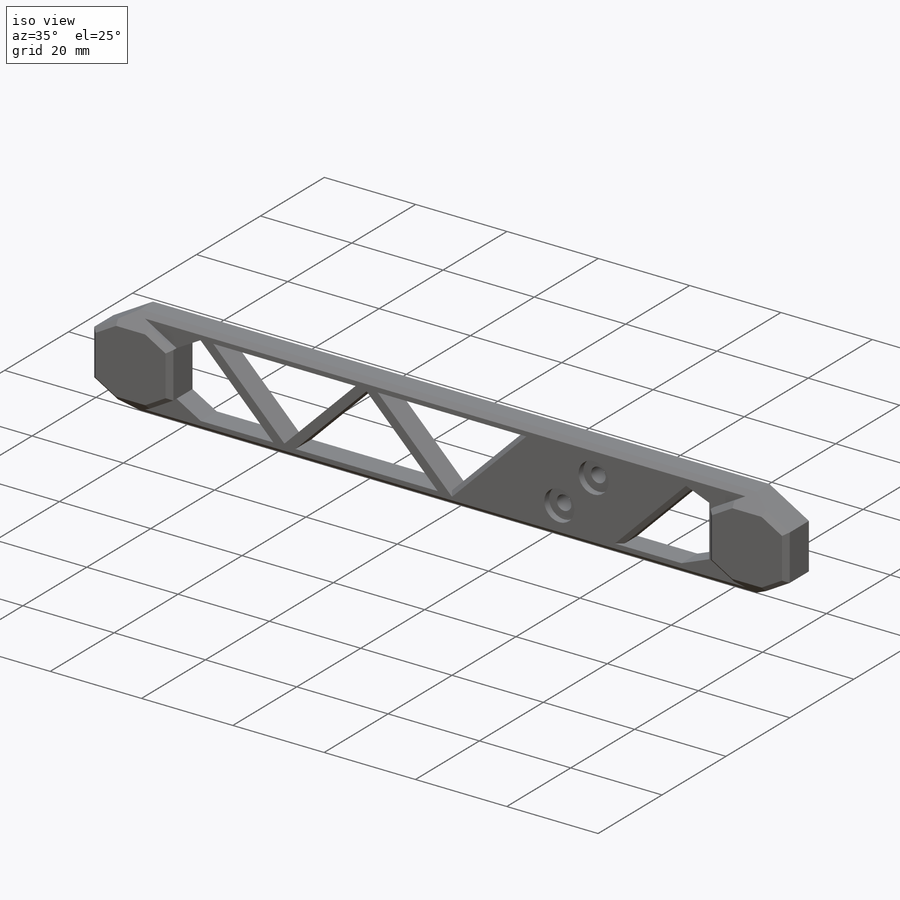
[diagram: iso view]
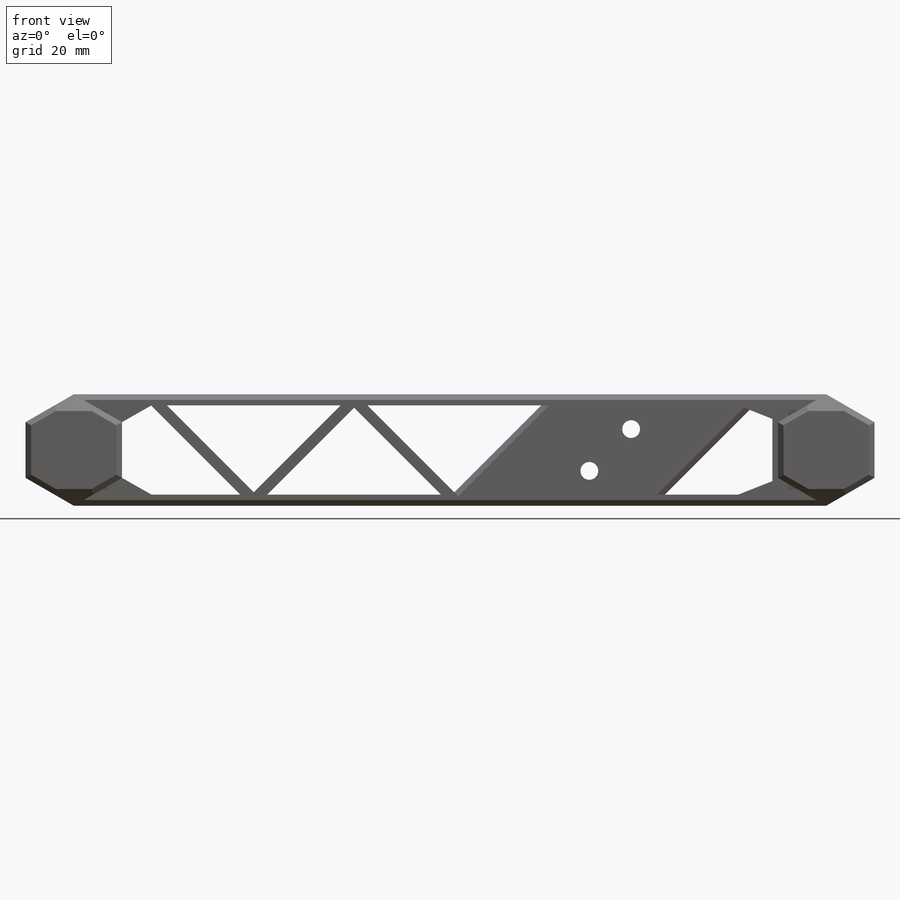
[diagram: front view]
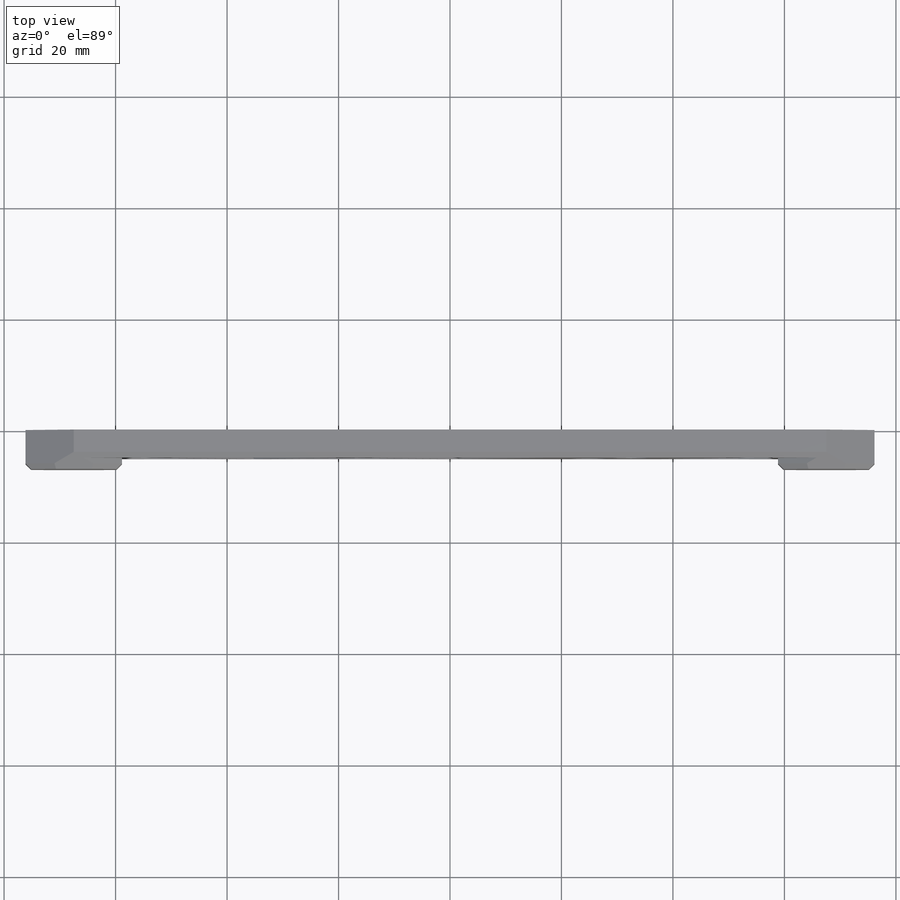
[diagram: top view]
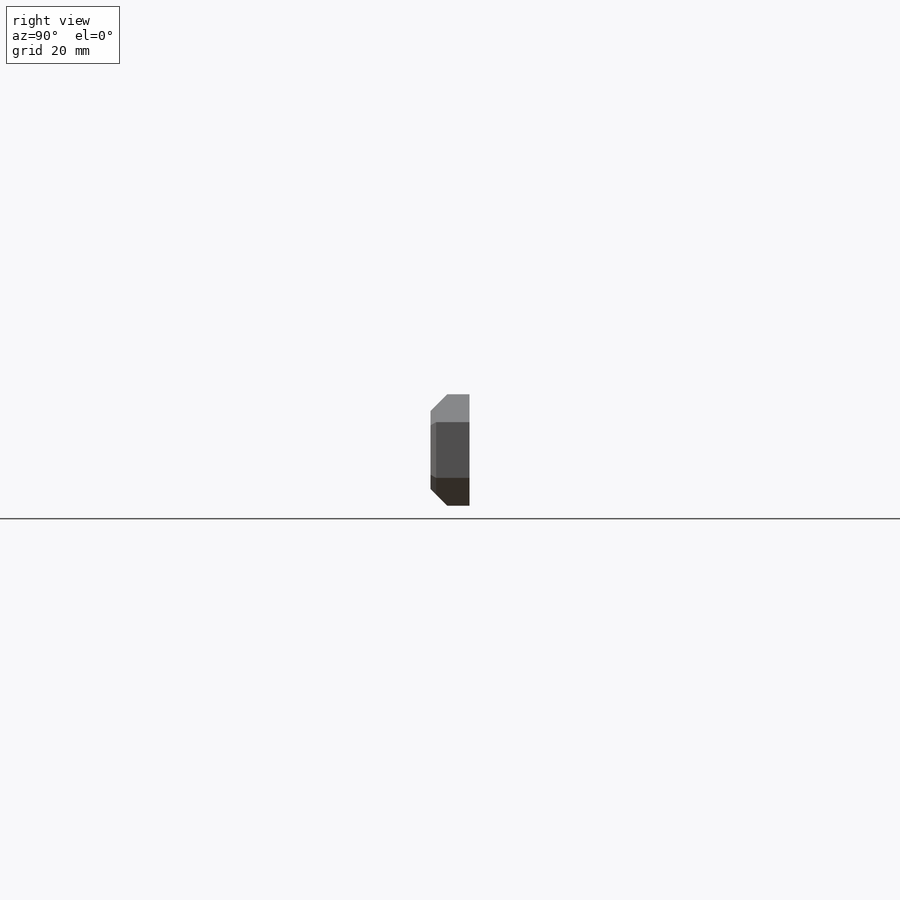
[diagram: right view]
SOLIDWORKS PART (.sldprt)
format: sldprt  version: not decoded by parser v0  size: 417,280 bytes
history: native  units: mm
features: sketch x6, cut_extrude x3, extrude x2, chamfer x2, material x1, mirror x1 (+11 scaffold rows collapsed)
feature tree (26):
  scaffold x11  (default folders/planes/origin — collapsed)
  material  "Material <not specified>"
  sketch  "Sketch1"  dims[c1.D2=~10.447507mm c1.D3=~2.230023mm c1.D5=58.21mm c1.D6=5.0mm c1.D7=20.0mm c1.D17=1.56mm c1.D8=5.2mm c2.D17=5.2mm c2.D1=135.0mm c2.D2=10.0mm c2.D3=2.7mm c2.D4=7.0mm c2.D8=2.7mm c2.D9=5.0mm c2.D10=6.0mm c2.D11=6.0mm c2.D12=5.0mm c2.D13=6.0mm c2.D14=2.7mm c3.D3=3.0mm c3.D4=30.0mm c3.D9=0.1mm c3.D10=15.0mm c3.D11=5.0mm c3.D12=5.0mm c3.D15=14.0mm c3.D16=9.0mm c3.D2=~179.491603deg c4.D3=~166.743257deg]
  sketch  "Sketch3"  dims[c1.D1=20.0mm c1.D2=~3.251492mm c2.D2=45.0deg c2.D3=~4.088279mm c3.D3=45.0deg c3.D4=~10.924553mm]
  extrude  "Boss-Extrude2"  Depth=5mm
  sketch  "Sketch7"
  extrude  "Boss-Extrude3"  Depth=2mm
  chamfer  "Chamfer2"  Distance=1mm Angle=45deg
  mirror  "Mirror1"
  sketch  "Sketch9"  dims[D1=3.2mm D2=3.2mm D3=7.5mm D4=7.5mm D5=3.75mm D6=35.0mm]
  cut_extrude  "Cut-Extrude1"  [1 undecoded]
  sketch  "Sketch10"  dims[D1=6.6mm D2=6.6mm]
  cut_extrude  "Cut-Extrude2"  Depth=1.5mm
  sketch  "Sketch11"  dims[c1.D2=~15.398167mm c2.D2=45.0deg c2.D3=2.0mm c2.D4=~22.865785mm c3.D4=45.0deg c3.D6=16.0mm c4.D6=45.0deg c4.D7=2.0mm c4.D1=0.0mm c4.D5=1.0mm]
  cut_extrude  "Cut-Extrude4"  [1 undecoded]
  chamfer  "Chamfer3"  Distance=1mm Angle=45deg
decode coverage: 10 of 14 modeling features carry decoded parameters
note: ~ marks probable driven/reference dimensions
note: 2 parameter values undecoded
note: suppression state not decoded; provenance and decode notes live in map.json
